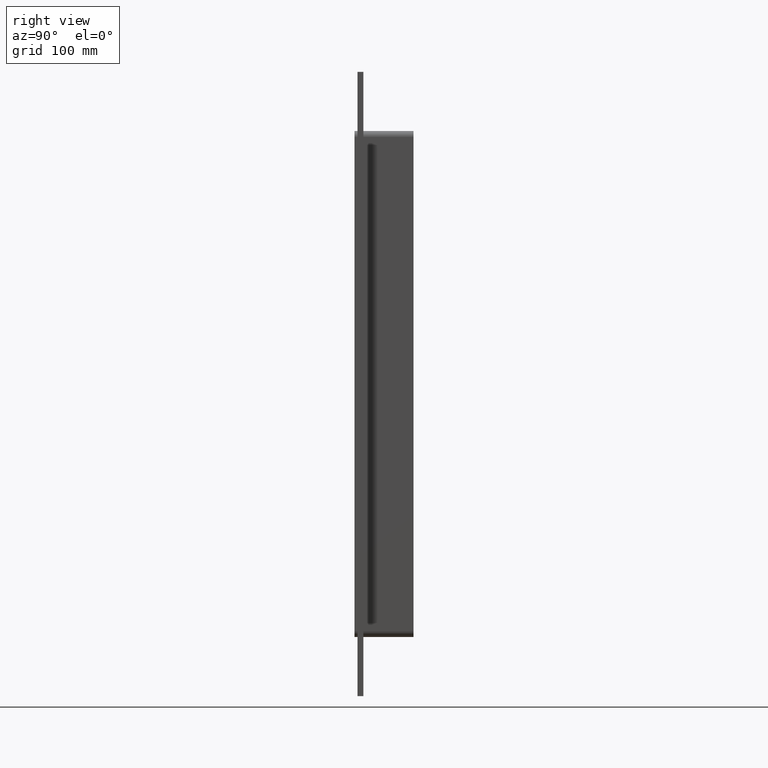
[diagram: clean part render]
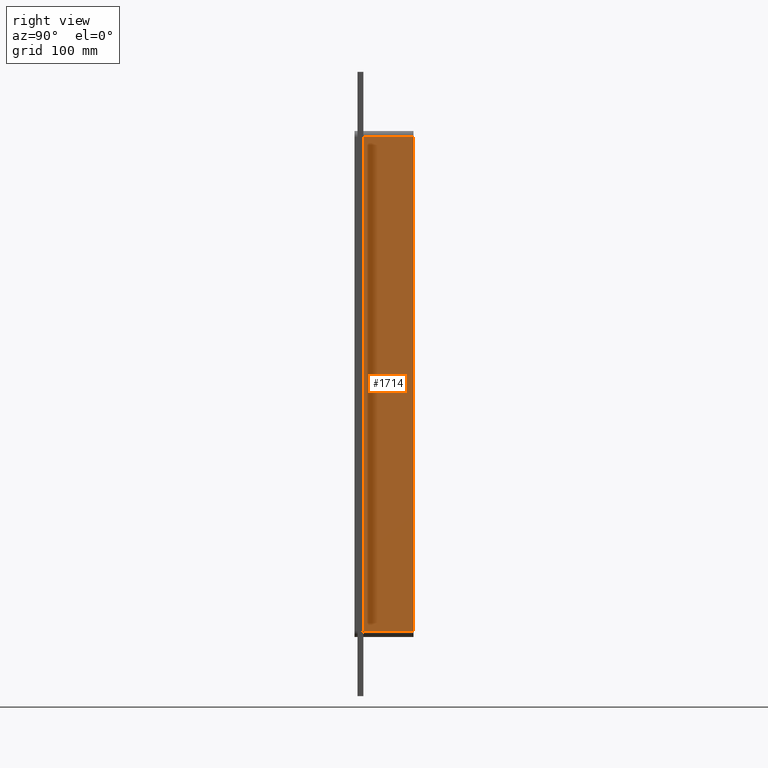
[diagram: same view with one face highlighted and labeled with its STEP entity id]
A machine part, right view. The second image highlights one B-rep face of the part: STEP entity #1714.
In plain terms, the highlighted planar face has unit normal (1, 0, 0).
Its self-contained STEP definition (entity closure, byte-faithful):
#952=CARTESIAN_POINT('',(131.5,57.0,-251.25));
#953=VERTEX_POINT('',#952);
#1003=CARTESIAN_POINT('',(131.5,57.0,251.25));
#1004=VERTEX_POINT('',#1003);
#1012=CARTESIAN_POINT('',(131.5,57.0,251.25));
#1013=DIRECTION('',(0.0,0.0,-1.0));
#1014=VECTOR('',#1013,502.5);
#1015=LINE('',#1012,#1014);
#1016=EDGE_CURVE('',#1004,#953,#1015,.T.);
#1337=CARTESIAN_POINT('',(131.5,6.000000000000001,-251.25));
#1338=VERTEX_POINT('',#1337);
#1346=CARTESIAN_POINT('',(131.5,6.000000000000001,251.25));
#1347=VERTEX_POINT('',#1346);
#1348=CARTESIAN_POINT('',(131.5,6.000000000000001,251.25));
#1349=DIRECTION('',(0.0,0.0,-1.0));
#1350=VECTOR('',#1349,502.5);
#1351=LINE('',#1348,#1350);
#1352=EDGE_CURVE('',#1347,#1338,#1351,.T.);
#1658=CARTESIAN_POINT('',(131.5,6.000000000000001,251.25));
#1659=DIRECTION('',(0.0,1.0,0.0));
#1660=VECTOR('',#1659,51.0);
#1661=LINE('',#1658,#1660);
#1662=EDGE_CURVE('',#1347,#1004,#1661,.T.);
#1698=CARTESIAN_POINT('',(131.5,0.0,257.25));
#1699=DIRECTION('',(1.0,0.0,0.0));
#1700=DIRECTION('',(0.0,0.0,-1.0));
#1701=AXIS2_PLACEMENT_3D('',#1698,#1699,#1700);
#1702=PLANE('',#1701);
#1703=ORIENTED_EDGE('',*,*,#1352,.T.);
#1704=CARTESIAN_POINT('',(131.5,57.0,-251.25));
#1705=DIRECTION('',(0.0,-1.0,0.0));
#1706=VECTOR('',#1705,51.0);
#1707=LINE('',#1704,#1706);
#1708=EDGE_CURVE('',#953,#1338,#1707,.T.);
#1709=ORIENTED_EDGE('',*,*,#1708,.F.);
#1710=ORIENTED_EDGE('',*,*,#1016,.F.);
#1711=ORIENTED_EDGE('',*,*,#1662,.F.);
#1712=EDGE_LOOP('',(#1703,#1709,#1710,#1711));
#1713=FACE_OUTER_BOUND('',#1712,.T.);
#1714=ADVANCED_FACE('',(#1713),#1702,.T.);